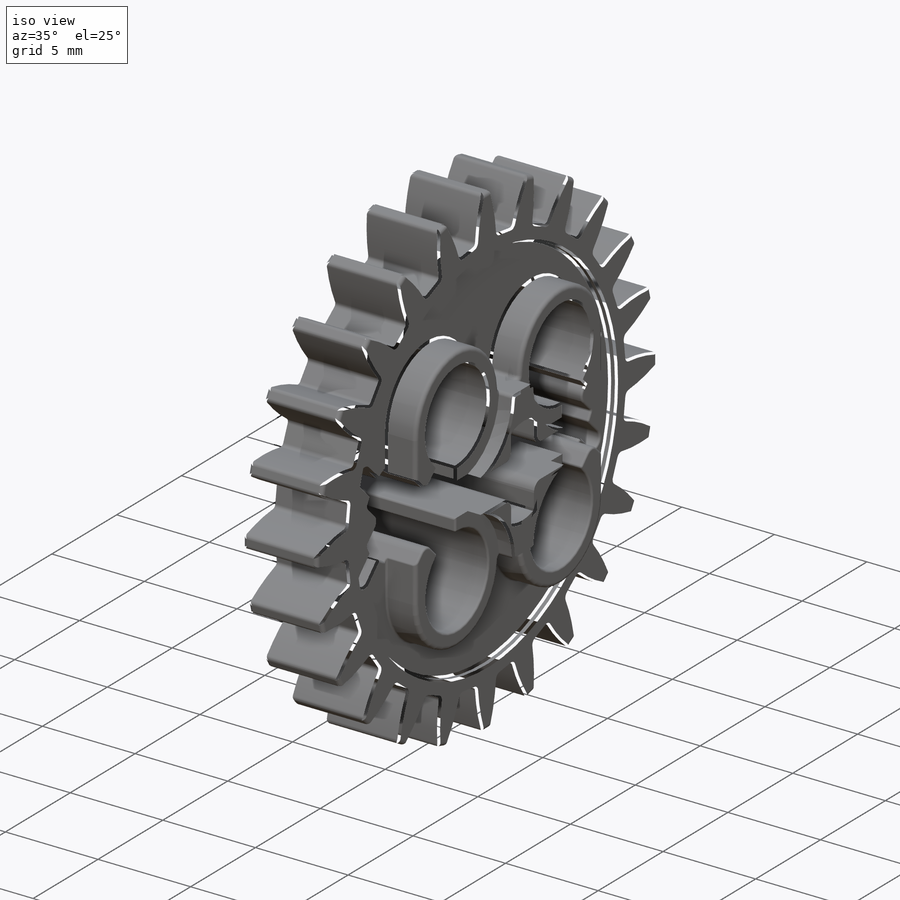
[diagram: iso view]
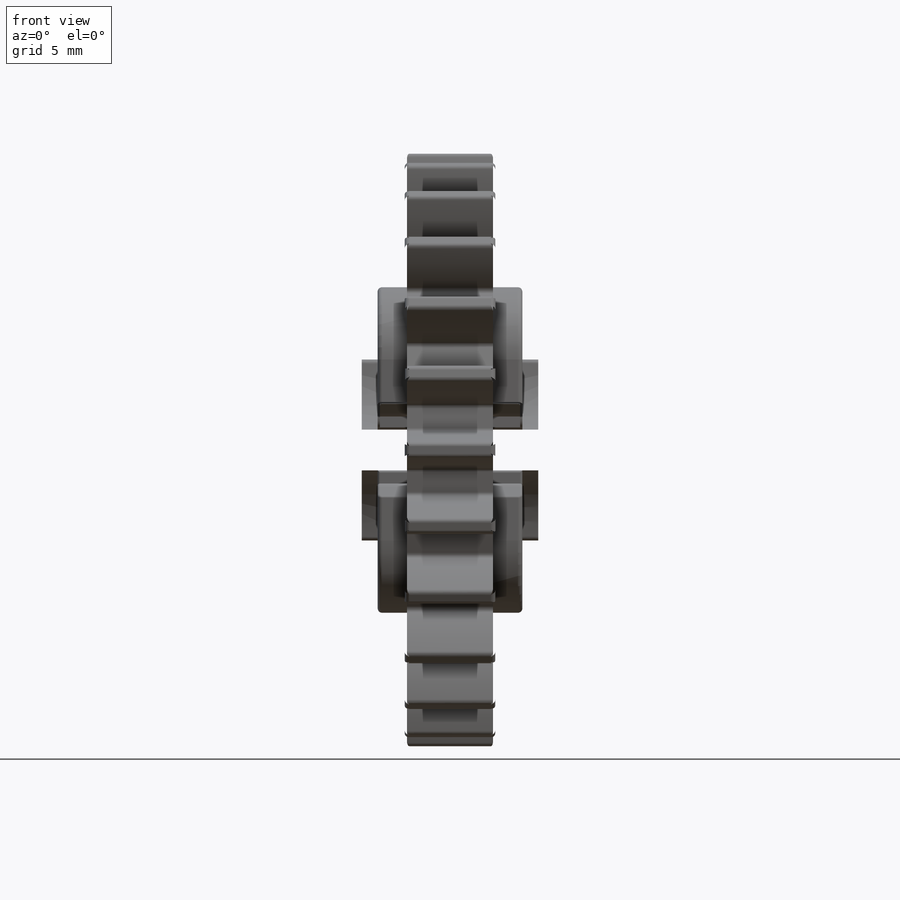
[diagram: front view]
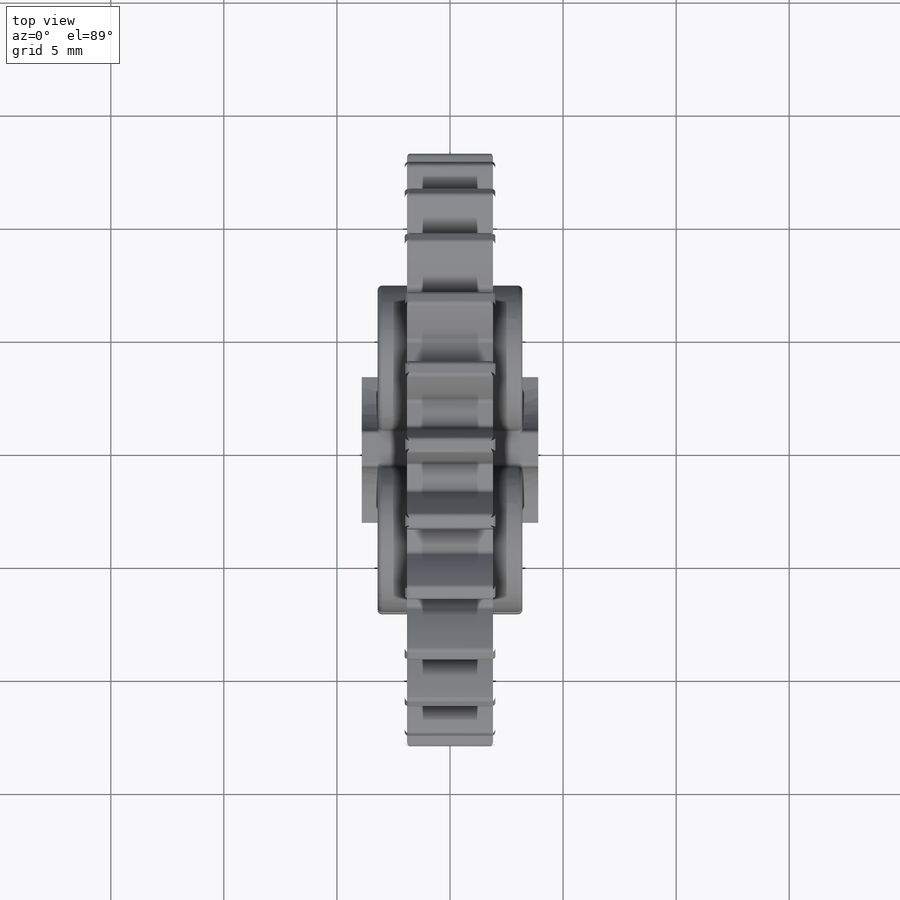
[diagram: top view]
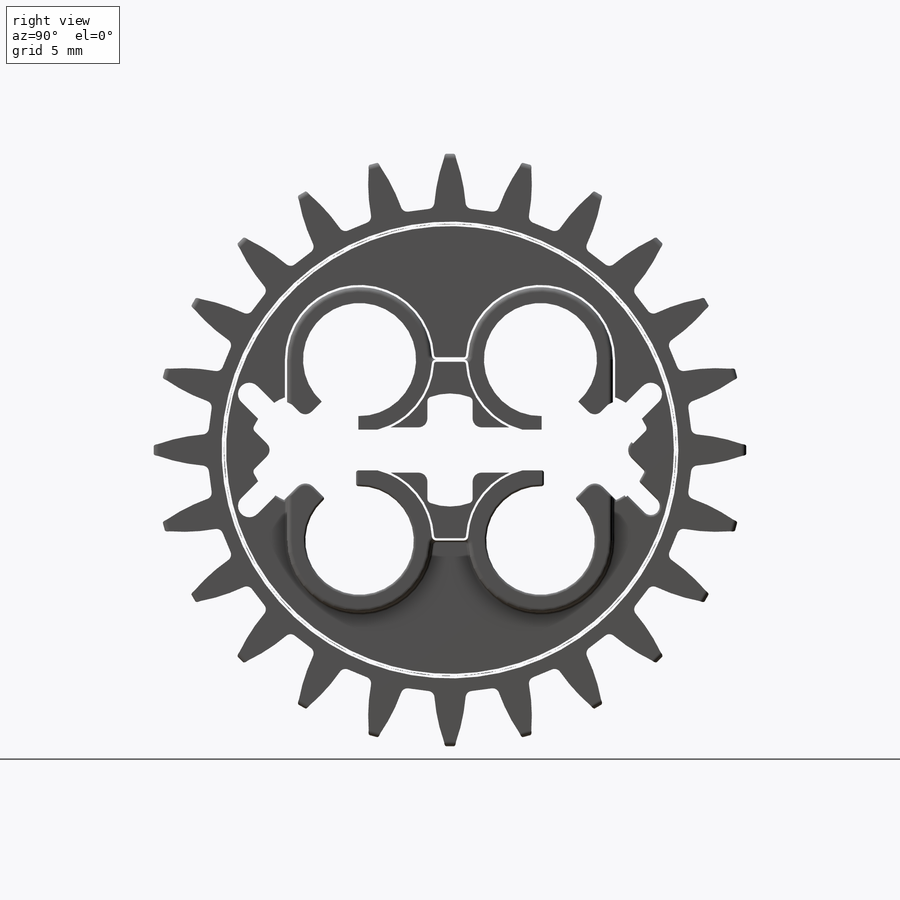
[diagram: right view]
SOLIDWORKS PART (.sldprt)
format: sldprt  version: not decoded by parser v0  size: 3,246,592 bytes
history: native  units: mm
features: sketch x10, pattern_circular x6, cut_extrude x5, extrude x4, plane x3, material x1, mirror x1, fillet x1 (+10 scaffold rows collapsed)
feature tree (41):
  scaffold x10  (default folders/planes/origin — collapsed)
  material  "PET"
  plane  "Alzado"
  plane  "Planta"
  plane  "Vista lateral"
  sketch  "Plan"  dims[D1=4.8mm D2=8.0mm]
  sketch  "Croquis1"  dims[c1.D1=24.0mm c1.D2=3.2mm c2.D1=21.6mm c2.D3=3.4mm]
  extrude  "Body"  Depth=4mm
  sketch  "Croquis2"  dims[D1=20.0mm]
  cut_extrude  "Cortar-Extruir1"  Depth=0.8mm
  mirror  "Simetría1"
  sketch  "Croquis3"  dims[c1.D2=6.4mm c1.D1=~5.16972mm c2.D1=45.0deg c2.D3=4.0mm c2.D4=3.2mm c2.D5=1.6mm c3.D4=1.8mm c3.D2=4.0mm]
  extrude  "Saliente-Extruir2"  Depth=6.4mm
  sketch  "Croquis4"  dims[D1=4.8mm D2=4.0mm]
  cut_extrude  "Holes"  Depth=8mm
  sketch  "Croquis5"  dims[D1=7.6mm D2=3.8mm]
  extrude  "Saliente-Extruir3"  Depth=8mm
  sketch  "Croquis6"  dims[c1.D1=4.8mm c1.D3=0.5mm c1.D2=1.8mm c2.D1=~5.78521mm c3.D1=45.0deg c3.D2=0.8mm c3.D3=3.8mm c3.D4=~4.293251mm c3.D5=~1.073313mm c4.D5=90.0deg c5.D5=~1.517893mm c5.D6=1.8mm c5.D7=~2.146625mm c5.D8=2.4mm c6.D7=~1.319949mm c6.D8=~3.618963mm c6.D1=6.4mm c6.D2=6.4mm]
  cut_extrude  "Cortar-Extruir2"  Depth=8mm
  sketch  "Croquis8"  dims[D1=9.5mm D2=1.2mm D3=5.0mm]
  cut_extrude  "Cortar-Extruir3"  [1 undecoded]
  sketch  "Croquis9"  dims[D1=0.8mm D2=2.2mm]
  cut_extrude  "Cortar-Extruir4"  [1 undecoded]
  sketch  "Croquis7"  dims[c1.D1=6.8mm c1.D3=14.0mm c1.D4=16.0mm c2.D1=~11.794087mm c2.D3=24.0mm c2.D4=~8.659203mm c2.D5=26.2mm c3.D3=8.0mm c3.D1=0.4mm c3.D2=0.8mm c4.D1=0.6mm c4.D2=1.6mm]
  extrude  "Tooth"  Depth=4mm
  fillet  "Redondeo1"  Radius=0.2mm
  pattern_circular  "MatrizC1 Teeth"  Count=24 Angle=360deg
  pattern_circular  "Redondeo2"  [2 undecoded]
  pattern_circular  "Redondeo3"  [2 undecoded]
  pattern_circular  "Redondeo4"  [2 undecoded]
  pattern_circular  "Redondeo5"  [2 undecoded]
  pattern_circular  "Redondeo6"  [2 undecoded]
decode coverage: 19 of 27 modeling features carry decoded parameters
note: ~ marks probable driven/reference dimensions
note: 12 parameter values undecoded
note: suppression state not decoded; provenance and decode notes live in map.json
